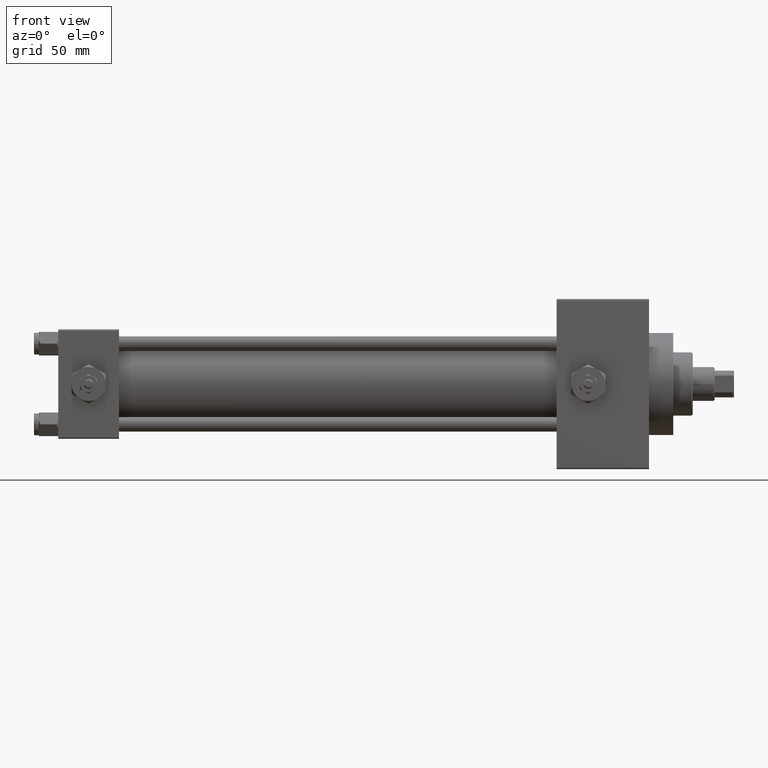
[diagram: clean part render]
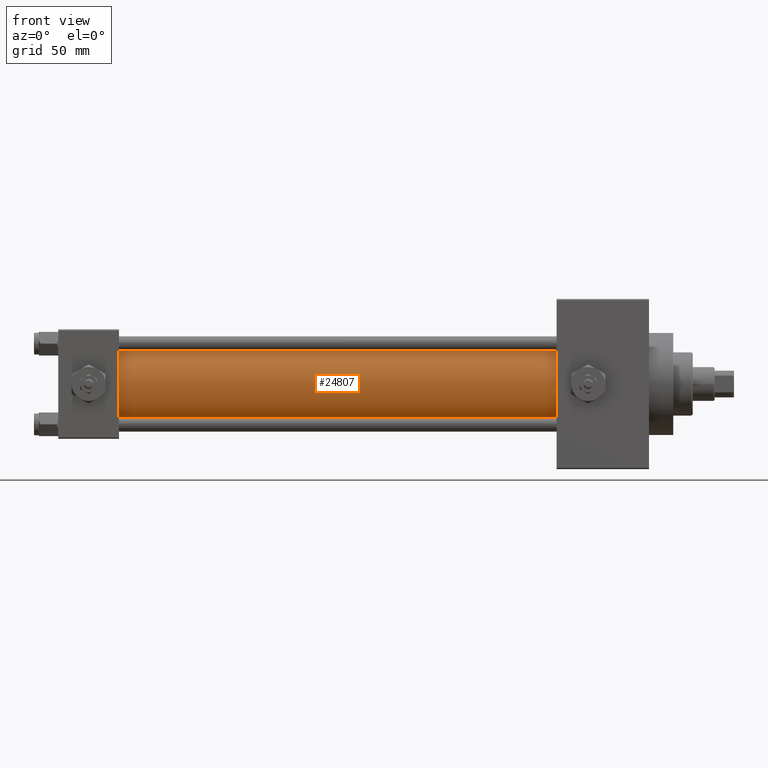
[diagram: same view with one face highlighted and labeled with its STEP entity id]
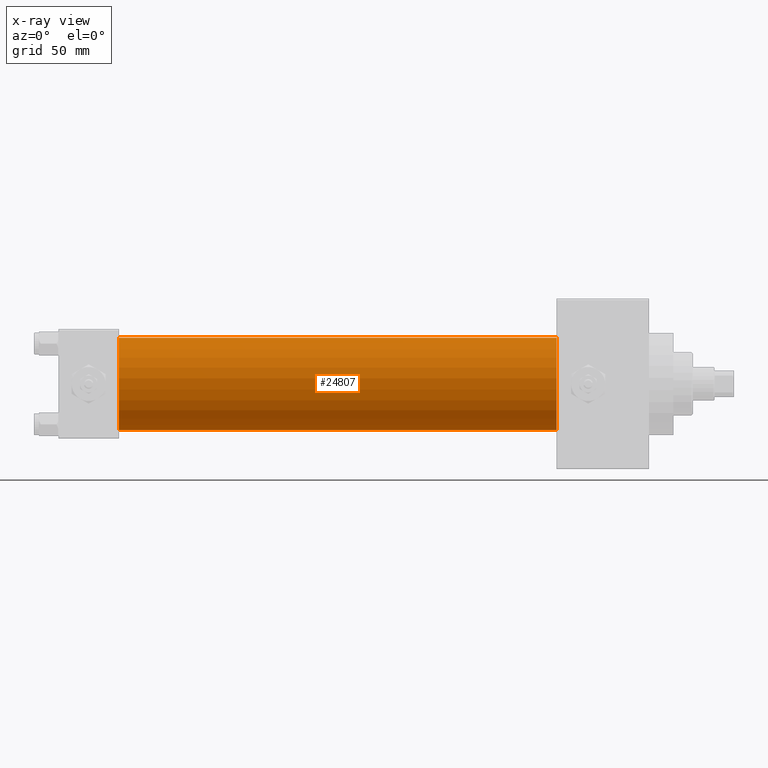
[diagram: x-ray of the same camera — body ghosted, the highlighted face saturated]
A machine part, front view. The second image highlights one B-rep face of the part: STEP entity #24807.
The next image is the same camera in x-ray: the body ghosted, the highlighted face saturated — about 0% of this face is hidden behind the body in this view.
In plain terms, the highlighted cylindrical surface (partial cylindrical patch) has radius 19 mm, axis along (-1, -0, -0).
Its self-contained STEP definition (entity closure, byte-faithful):
#44 = CARTESIAN_POINT ( 'NONE',  ( 205.0000000000000000, -2.752562955852400657E-16, -19.00000000000000000 ) ) ;
#2254 = CIRCLE ( 'NONE', #30031, 19.00000000000000000 ) ;
#3547 = DIRECTION ( 'NONE',  ( -1.000000000000000000, -0.000000000000000000, -0.000000000000000000 ) ) ;
#5254 = DIRECTION ( 'NONE',  ( -1.000000000000000000, -0.000000000000000000, -0.000000000000000000 ) ) ;
#7231 = ORIENTED_EDGE ( 'NONE', *, *, #48454, .T. ) ;
#8065 = CARTESIAN_POINT ( 'NONE',  ( 24.99999999999999289, -2.752562955852400657E-16, -19.00000000000000000 ) ) ;
#10504 = DIRECTION ( 'NONE',  ( 0.000000000000000000, 0.000000000000000000, 1.000000000000000000 ) ) ;
#11318 = CARTESIAN_POINT ( 'NONE',  ( 205.0000000000000000, -2.752562955852400657E-16, -19.00000000000000000 ) ) ;
#11496 = CARTESIAN_POINT ( 'NONE',  ( 205.0000000000000000, -2.602085213965210642E-15, 0.000000000000000000 ) ) ;
#12490 = CARTESIAN_POINT ( 'NONE',  ( 205.0000000000000000, -2.602085213965210642E-15, 19.00000000000000000 ) ) ;
#14555 = VERTEX_POINT ( 'NONE', #31828 ) ;
#15073 = EDGE_CURVE ( 'NONE', #14555, #23584, #32993, .T. ) ;
#15452 = CYLINDRICAL_SURFACE ( 'NONE', #24079, 19.00000000000000000 ) ;
#15825 = VERTEX_POINT ( 'NONE', #44 ) ;
#18245 = CARTESIAN_POINT ( 'NONE',  ( 205.0000000000000000, -2.602085213965210642E-15, 0.000000000000000000 ) ) ;
#22387 = CARTESIAN_POINT ( 'NONE',  ( 24.99999999999999289, -2.602085213965210642E-15, 0.000000000000000000 ) ) ;
#23584 = VERTEX_POINT ( 'NONE', #35328 ) ;
#24079 = AXIS2_PLACEMENT_3D ( 'NONE', #11496, #3547, #10504 ) ;
#24807 = ADVANCED_FACE ( 'NONE', ( #44730 ), #15452, .T. ) ;
#25860 = DIRECTION ( 'NONE',  ( 1.000000000000000000, -0.000000000000000000, 0.000000000000000000 ) ) ;
#25947 = DIRECTION ( 'NONE',  ( 0.000000000000000000, 0.000000000000000000, -1.000000000000000000 ) ) ;
#27537 = EDGE_LOOP ( 'NONE', ( #44631, #48914, #43384, #7231 ) ) ;
#29576 = DIRECTION ( 'NONE',  ( 0.000000000000000000, 0.000000000000000000, 1.000000000000000000 ) ) ;
#30031 = AXIS2_PLACEMENT_3D ( 'NONE', #22387, #25860, #29576 ) ;
#31828 = CARTESIAN_POINT ( 'NONE',  ( 205.0000000000000000, -2.602085213965210642E-15, 19.00000000000000000 ) ) ;
#32993 = LINE ( 'NONE', #12490, #46075 ) ;
#34684 = VECTOR ( 'NONE', #48773, 1000.000000000000000 ) ;
#35328 = CARTESIAN_POINT ( 'NONE',  ( 24.99999999999999289, -2.602085213965210642E-15, 19.00000000000000000 ) ) ;
#40238 = CIRCLE ( 'NONE', #44993, 19.00000000000000000 ) ;
#41333 = LINE ( 'NONE', #11318, #34684 ) ;
#41805 = DIRECTION ( 'NONE',  ( 1.000000000000000000, 0.000000000000000000, 0.000000000000000000 ) ) ;
#43384 = ORIENTED_EDGE ( 'NONE', *, *, #15073, .T. ) ;
#44631 = ORIENTED_EDGE ( 'NONE', *, *, #46125, .F. ) ;
#44730 = FACE_OUTER_BOUND ( 'NONE', #27537, .T. ) ;
#44993 = AXIS2_PLACEMENT_3D ( 'NONE', #18245, #41805, #25947 ) ;
#45519 = EDGE_CURVE ( 'NONE', #14555, #15825, #40238, .T. ) ;
#46075 = VECTOR ( 'NONE', #5254, 1000.000000000000000 ) ;
#46125 = EDGE_CURVE ( 'NONE', #15825, #46270, #41333, .T. ) ;
#46270 = VERTEX_POINT ( 'NONE', #8065 ) ;
#48454 = EDGE_CURVE ( 'NONE', #23584, #46270, #2254, .T. ) ;
#48773 = DIRECTION ( 'NONE',  ( -1.000000000000000000, -0.000000000000000000, -0.000000000000000000 ) ) ;
#48914 = ORIENTED_EDGE ( 'NONE', *, *, #45519, .F. ) ;